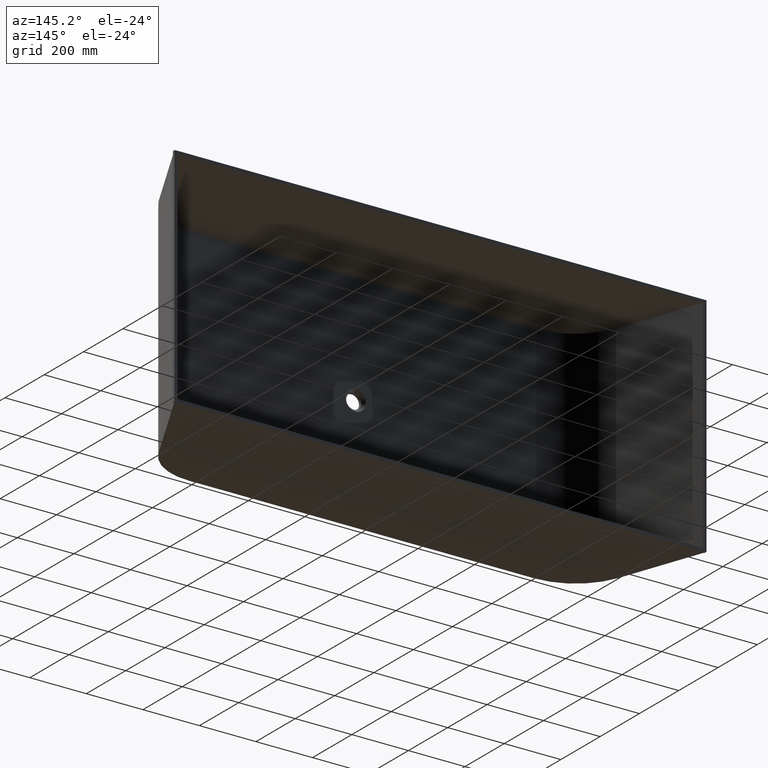
[diagram: clean part render]
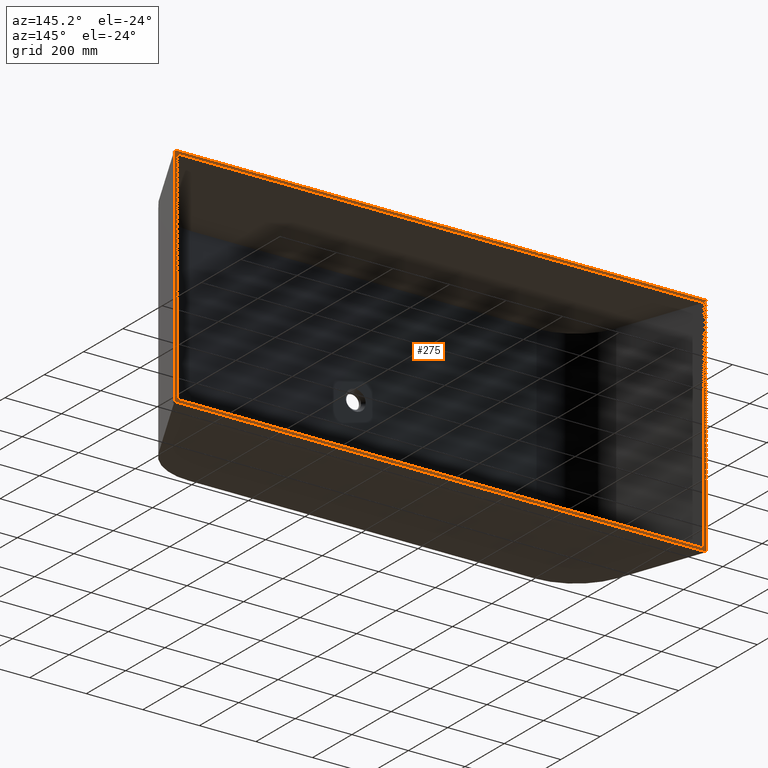
[diagram: same view with one face highlighted and labeled with its STEP entity id]
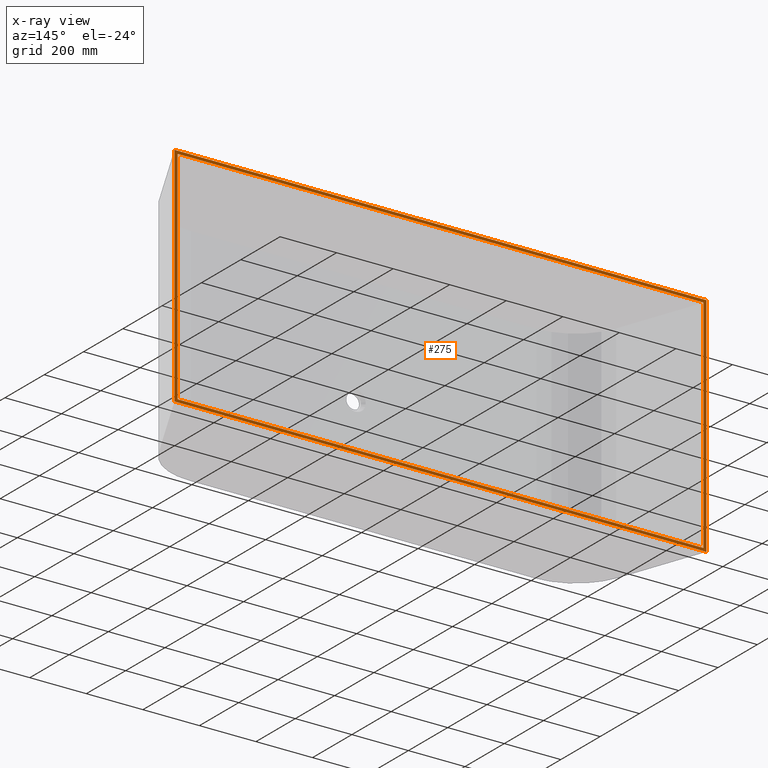
[diagram: x-ray of the same camera — body ghosted, the highlighted face saturated]
A machine part, auxiliary view. The second image highlights one B-rep face of the part: STEP entity #275.
The next image is the same camera in x-ray: the body ghosted, the highlighted face saturated — about 0% of this face is hidden behind the body in this view.
In plain terms, the highlighted planar face has unit normal (-0, 1, 0).
Its self-contained STEP definition (entity closure, byte-faithful):
#21 = DIRECTION ( 'NONE',  ( -0.0000000000000000000, -0.0000000000000000000, -1.000000000000000000 ) ) ;
#94 = CARTESIAN_POINT ( 'NONE',  ( -932.0000000000001137, 0.0000000000000000000, -390.0000000000000000 ) ) ;
#168 = VERTEX_POINT ( 'NONE', #498 ) ;
#274 = LINE ( 'NONE', #961, #928 ) ;
#275 = ADVANCED_FACE ( 'NONE', ( #1066, #1723 ), #1453, .T. ) ;
#297 = LINE ( 'NONE', #979, #800 ) ;
#312 = CARTESIAN_POINT ( 'NONE',  ( 1.609176873985660255E-33, -1.222013150116926084E-15, -390.0000000000000000 ) ) ;
#385 = LINE ( 'NONE', #1068, #1104 ) ;
#422 = VERTEX_POINT ( 'NONE', #934 ) ;
#489 = VERTEX_POINT ( 'NONE', #707 ) ;
#498 = CARTESIAN_POINT ( 'NONE',  ( -942.5909744527774592, -2.463240053094104319E-15, -400.0000000000000000 ) ) ;
#558 = CARTESIAN_POINT ( 'NONE',  ( 939.2862599953933795, 1.486202384699272120E-17, 390.0000000000000000 ) ) ;
#565 = CARTESIAN_POINT ( 'NONE',  ( 1.609176873985660255E-33, -1.222013150116926084E-15, 400.0000000000000000 ) ) ;
#610 = LINE ( 'NONE', #1281, #1437 ) ;
#626 = VECTOR ( 'NONE', #1223, 1000.000000000000000 ) ;
#673 = VERTEX_POINT ( 'NONE', #900 ) ;
#693 = ORIENTED_EDGE ( 'NONE', *, *, #1417, .F. ) ;
#707 = CARTESIAN_POINT ( 'NONE',  ( -942.5909744527774592, -2.463240053094104319E-15, 400.0000000000000000 ) ) ;
#774 = EDGE_CURVE ( 'NONE', #168, #1887, #385, .T. ) ;
#800 = VECTOR ( 'NONE', #1643, 1000.000000000000000 ) ;
#867 = VECTOR ( 'NONE', #992, 1000.000000000000000 ) ;
#869 = LINE ( 'NONE', #1545, #1839 ) ;
#900 = CARTESIAN_POINT ( 'NONE',  ( 928.0000000000001137, 0.0000000000000000000, 390.0000000000000000 ) ) ;
#928 = VECTOR ( 'NONE', #1626, 1000.000000000000000 ) ;
#934 = CARTESIAN_POINT ( 'NONE',  ( 928.0000000000001137, 0.0000000000000000000, -390.0000000000000000 ) ) ;
#961 = CARTESIAN_POINT ( 'NONE',  ( -942.5909744527774592, -2.463240053094104319E-15, 390.0000000000000000 ) ) ;
#979 = CARTESIAN_POINT ( 'NONE',  ( 1.609176873985660255E-33, -1.222013150116926084E-15, 390.0000000000000000 ) ) ;
#984 = EDGE_CURVE ( 'NONE', #489, #1825, #2077, .T. ) ;
#992 = DIRECTION ( 'NONE',  ( 1.000000000000000000, 1.316824515212204739E-18, 0.0000000000000000000 ) ) ;
#1061 = ORIENTED_EDGE ( 'NONE', *, *, #1203, .F. ) ;
#1062 = ORIENTED_EDGE ( 'NONE', *, *, #774, .F. ) ;
#1065 = DIRECTION ( 'NONE',  ( 1.000000000000000000, 1.316824515212204739E-18, 0.0000000000000000000 ) ) ;
#1066 = FACE_OUTER_BOUND ( 'NONE', #2159, .T. ) ;
#1068 = CARTESIAN_POINT ( 'NONE',  ( 1.609176873985660255E-33, -1.222013150116926084E-15, -400.0000000000000000 ) ) ;
#1082 = CARTESIAN_POINT ( 'NONE',  ( 939.2862599953933795, 1.486202384699278899E-17, 400.0000000000000000 ) ) ;
#1083 = ORIENTED_EDGE ( 'NONE', *, *, #984, .T. ) ;
#1104 = VECTOR ( 'NONE', #1412, 1000.000000000000000 ) ;
#1115 = DIRECTION ( 'NONE',  ( -1.316824515212204739E-18, 1.000000000000000000, 0.0000000000000000000 ) ) ;
#1164 = CARTESIAN_POINT ( 'NONE',  ( -932.0000000000001137, 0.0000000000000000000, 390.0000000000000000 ) ) ;
#1194 = ORIENTED_EDGE ( 'NONE', *, *, #1579, .T. ) ;
#1203 = EDGE_CURVE ( 'NONE', #673, #422, #869, .T. ) ;
#1223 = DIRECTION ( 'NONE',  ( 0.0000000000000000000, 0.0000000000000000000, -1.000000000000000000 ) ) ;
#1224 = AXIS2_PLACEMENT_3D ( 'NONE', #1613, #1115, #1596 ) ;
#1281 = CARTESIAN_POINT ( 'NONE',  ( -932.0000000000001137, 0.0000000000000000000, 390.0000000000000000 ) ) ;
#1320 = ORIENTED_EDGE ( 'NONE', *, *, #1925, .T. ) ;
#1412 = DIRECTION ( 'NONE',  ( 1.000000000000000000, 1.316824515212204739E-18, 0.0000000000000000000 ) ) ;
#1417 = EDGE_CURVE ( 'NONE', #489, #168, #274, .T. ) ;
#1437 = VECTOR ( 'NONE', #1954, 1000.000000000000000 ) ;
#1438 = CARTESIAN_POINT ( 'NONE',  ( 939.2862599953933795, 1.486202384699278899E-17, -400.0000000000000000 ) ) ;
#1446 = ORIENTED_EDGE ( 'NONE', *, *, #1779, .T. ) ;
#1453 = PLANE ( 'NONE',  #1224 ) ;
#1500 = VERTEX_POINT ( 'NONE', #1164 ) ;
#1522 = ORIENTED_EDGE ( 'NONE', *, *, #2180, .F. ) ;
#1524 = VECTOR ( 'NONE', #1065, 1000.000000000000000 ) ;
#1545 = CARTESIAN_POINT ( 'NONE',  ( 928.0000000000001137, 0.0000000000000000000, 390.0000000000000000 ) ) ;
#1579 = EDGE_CURVE ( 'NONE', #2074, #422, #1817, .T. ) ;
#1596 = DIRECTION ( 'NONE',  ( -1.000000000000000000, -1.316824515212204739E-18, 0.0000000000000000000 ) ) ;
#1613 = CARTESIAN_POINT ( 'NONE',  ( 1.609176873985660255E-33, -1.222013150116926084E-15, 390.0000000000000000 ) ) ;
#1626 = DIRECTION ( 'NONE',  ( 0.0000000000000000000, 0.0000000000000000000, -1.000000000000000000 ) ) ;
#1643 = DIRECTION ( 'NONE',  ( 1.000000000000000000, 1.316824515212204739E-18, 0.0000000000000000000 ) ) ;
#1723 = FACE_BOUND ( 'NONE', #1966, .T. ) ;
#1779 = EDGE_CURVE ( 'NONE', #1825, #1887, #2071, .T. ) ;
#1817 = LINE ( 'NONE', #312, #867 ) ;
#1825 = VERTEX_POINT ( 'NONE', #1082 ) ;
#1839 = VECTOR ( 'NONE', #21, 1000.000000000000000 ) ;
#1887 = VERTEX_POINT ( 'NONE', #1438 ) ;
#1925 = EDGE_CURVE ( 'NONE', #1500, #2074, #610, .T. ) ;
#1954 = DIRECTION ( 'NONE',  ( -0.0000000000000000000, -0.0000000000000000000, -1.000000000000000000 ) ) ;
#1966 = EDGE_LOOP ( 'NONE', ( #1320, #1194, #1061, #1522 ) ) ;
#2071 = LINE ( 'NONE', #558, #626 ) ;
#2074 = VERTEX_POINT ( 'NONE', #94 ) ;
#2077 = LINE ( 'NONE', #565, #1524 ) ;
#2159 = EDGE_LOOP ( 'NONE', ( #1062, #693, #1083, #1446 ) ) ;
#2180 = EDGE_CURVE ( 'NONE', #1500, #673, #297, .T. ) ;